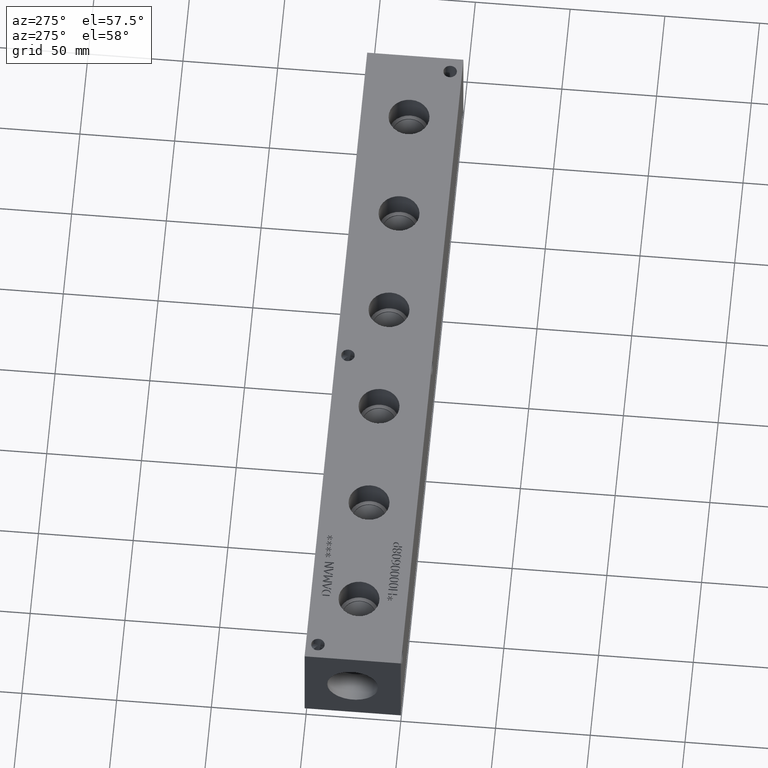
[diagram: clean part render]
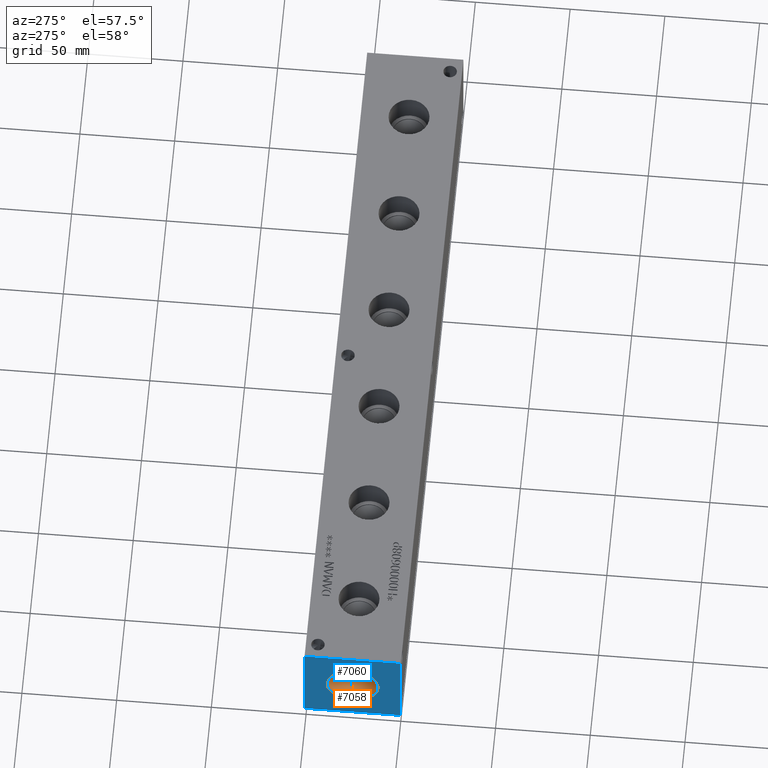
[diagram: same view with the hole feature highlighted: cylindrical wall and planar end face, labeled with their STEP entity ids]
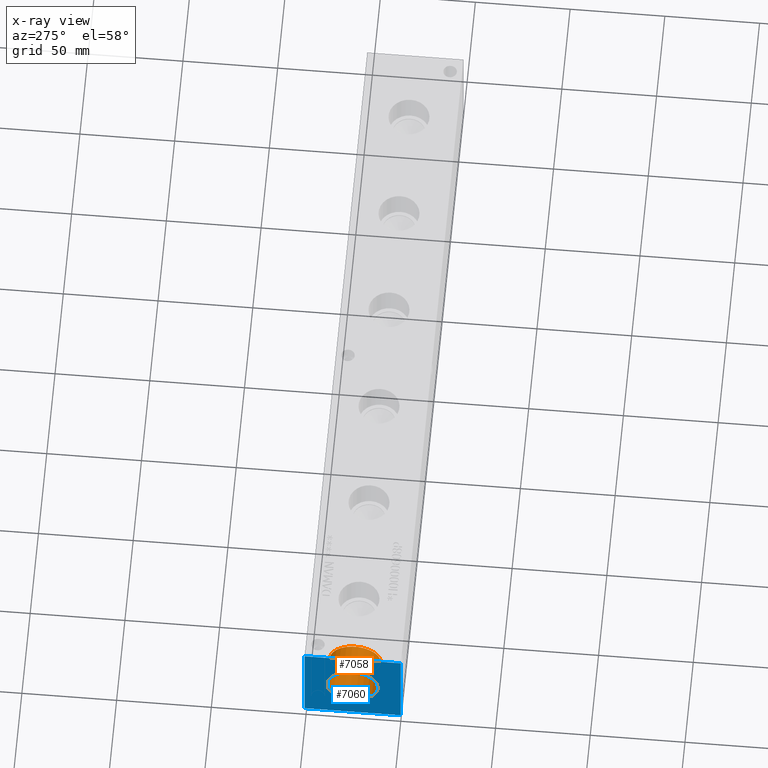
[diagram: x-ray of the same camera — body ghosted, the hole faces saturated]
A machine part, auxiliary view. The highlighted faces form one hole feature of diameter 26.924 mm: the cylindrical wall (entity #7058, orange) and its adjacent planar end face (entity #7060, blue) — they share a circular edge in the B-rep.
The next image is the same camera in x-ray (body ghosted, the hole faces saturated) — the bore reads through the body.
Wall:
#60=CYLINDRICAL_SURFACE('',#7402,13.462);
#131=CIRCLE('',#7399,13.462);
#132=CIRCLE('',#7400,13.462);
#134=CIRCLE('',#7403,13.462);
#135=CIRCLE('',#7404,13.462);
#757=FACE_OUTER_BOUND('',#1165,.T.);
#1165=EDGE_LOOP('',(#6243,#6244,#6245,#6246,#6247,#6248));
#1831=LINE('',#12182,#2488);
#2488=VECTOR('',#8711,13.462);
#3371=VERTEX_POINT('',#12171);
#3372=VERTEX_POINT('',#12172);
#3374=VERTEX_POINT('',#12178);
#3375=VERTEX_POINT('',#12179);
#4336=EDGE_CURVE('',#3371,#3372,#131,.T.);
#4337=EDGE_CURVE('',#3372,#3371,#132,.T.);
#4339=EDGE_CURVE('',#3374,#3375,#134,.T.);
#4340=EDGE_CURVE('',#3375,#3374,#135,.T.);
#4341=EDGE_CURVE('',#3375,#3372,#1831,.T.);
#6243=ORIENTED_EDGE('',*,*,#4339,.F.);
#6244=ORIENTED_EDGE('',*,*,#4340,.F.);
#6245=ORIENTED_EDGE('',*,*,#4341,.T.);
#6246=ORIENTED_EDGE('',*,*,#4336,.F.);
#6247=ORIENTED_EDGE('',*,*,#4337,.F.);
#6248=ORIENTED_EDGE('',*,*,#4341,.F.);
#7058=ADVANCED_FACE('',(#757),#60,.F.);
#7399=AXIS2_PLACEMENT_3D('',#12173,#8699,#8700);
#7400=AXIS2_PLACEMENT_3D('',#12174,#8701,#8702);
#7402=AXIS2_PLACEMENT_3D('',#12177,#8705,#8706);
#7403=AXIS2_PLACEMENT_3D('',#12180,#8707,#8708);
#7404=AXIS2_PLACEMENT_3D('',#12181,#8709,#8710);
#8699=DIRECTION('center_axis',(-1.,0.,0.));
#8700=DIRECTION('ref_axis',(0.,1.,0.));
#8701=DIRECTION('center_axis',(-1.,0.,0.));
#8702=DIRECTION('ref_axis',(0.,1.,0.));
#8705=DIRECTION('center_axis',(-1.,0.,0.));
#8706=DIRECTION('ref_axis',(0.,1.,0.));
#8707=DIRECTION('center_axis',(1.,0.,0.));
#8708=DIRECTION('ref_axis',(0.,1.,0.));
#8709=DIRECTION('center_axis',(1.,0.,0.));
#8710=DIRECTION('ref_axis',(0.,1.,0.));
#8711=DIRECTION('',(1.,0.,0.));
#12171=CARTESIAN_POINT('',(15.8496,38.862,25.4));
#12172=CARTESIAN_POINT('',(15.8496,11.938,25.4));
#12173=CARTESIAN_POINT('Origin',(15.8496,25.4,25.4));
#12174=CARTESIAN_POINT('Origin',(15.8496,25.4,25.4));
#12177=CARTESIAN_POINT('Origin',(7.9248,25.4,25.4));
#12178=CARTESIAN_POINT('',(0.,38.862,25.4));
#12179=CARTESIAN_POINT('',(1.11022302462516E-15,11.938,25.4));
#12180=CARTESIAN_POINT('Origin',(0.,25.4,25.4));
#12181=CARTESIAN_POINT('Origin',(0.,25.4,25.4));
#12182=CARTESIAN_POINT('',(7.9248,11.938,25.4));
End face:
#134=CIRCLE('',#7403,13.462);
#135=CIRCLE('',#7404,13.462);
#184=FACE_BOUND('',#1168,.T.);
#399=PLANE('',#7406);
#759=FACE_OUTER_BOUND('',#1167,.T.);
#1167=EDGE_LOOP('',(#6254,#6255,#6256,#6257));
#1168=EDGE_LOOP('',(#6258,#6259));
#1419=LINE('',#11020,#2076);
#1833=LINE('',#12188,#2490);
#1834=LINE('',#12189,#2491);
#1835=LINE('',#12190,#2492);
#2076=VECTOR('',#7755,10.);
#2490=VECTOR('',#8717,10.);
#2491=VECTOR('',#8718,10.);
#2492=VECTOR('',#8719,10.);
#3022=VERTEX_POINT('',#11013);
#3025=VERTEX_POINT('',#11018);
#3374=VERTEX_POINT('',#12178);
#3375=VERTEX_POINT('',#12179);
#3376=VERTEX_POINT('',#12186);
#3377=VERTEX_POINT('',#12187);
#3827=EDGE_CURVE('',#3025,#3022,#1419,.T.);
#4339=EDGE_CURVE('',#3374,#3375,#134,.T.);
#4340=EDGE_CURVE('',#3375,#3374,#135,.T.);
#4343=EDGE_CURVE('',#3376,#3377,#1833,.T.);
#4344=EDGE_CURVE('',#3377,#3022,#1834,.T.);
#4345=EDGE_CURVE('',#3376,#3025,#1835,.T.);
#6254=ORIENTED_EDGE('',*,*,#4343,.T.);
#6255=ORIENTED_EDGE('',*,*,#4344,.T.);
#6256=ORIENTED_EDGE('',*,*,#3827,.F.);
#6257=ORIENTED_EDGE('',*,*,#4345,.F.);
#6258=ORIENTED_EDGE('',*,*,#4339,.T.);
#6259=ORIENTED_EDGE('',*,*,#4340,.T.);
#7060=ADVANCED_FACE('',(#759,#184),#399,.T.);
#7403=AXIS2_PLACEMENT_3D('',#12180,#8707,#8708);
#7404=AXIS2_PLACEMENT_3D('',#12181,#8709,#8710);
#7406=AXIS2_PLACEMENT_3D('',#12185,#8715,#8716);
#7755=DIRECTION('',(0.,-1.,0.));
#8707=DIRECTION('center_axis',(1.,0.,0.));
#8708=DIRECTION('ref_axis',(0.,1.,0.));
#8709=DIRECTION('center_axis',(1.,0.,0.));
#8710=DIRECTION('ref_axis',(0.,1.,0.));
#8715=DIRECTION('center_axis',(-1.,0.,0.));
#8716=DIRECTION('ref_axis',(0.,-1.,0.));
#8717=DIRECTION('',(0.,-1.,0.));
#8718=DIRECTION('',(0.,0.,1.));
#8719=DIRECTION('',(0.,0.,1.));
#11013=CARTESIAN_POINT('',(0.,0.,50.8));
#11018=CARTESIAN_POINT('',(0.,50.8,50.8));
#11020=CARTESIAN_POINT('',(0.,50.8,50.8));
#12178=CARTESIAN_POINT('',(0.,38.862,25.4));
#12179=CARTESIAN_POINT('',(1.11022302462516E-15,11.938,25.4));
#12180=CARTESIAN_POINT('Origin',(0.,25.4,25.4));
#12181=CARTESIAN_POINT('Origin',(0.,25.4,25.4));
#12185=CARTESIAN_POINT('Origin',(0.,50.8,0.));
#12186=CARTESIAN_POINT('',(0.,50.8,0.));
#12187=CARTESIAN_POINT('',(0.,0.,0.));
#12188=CARTESIAN_POINT('',(0.,50.8,0.));
#12189=CARTESIAN_POINT('',(0.,0.,0.));
#12190=CARTESIAN_POINT('',(0.,50.8,0.));